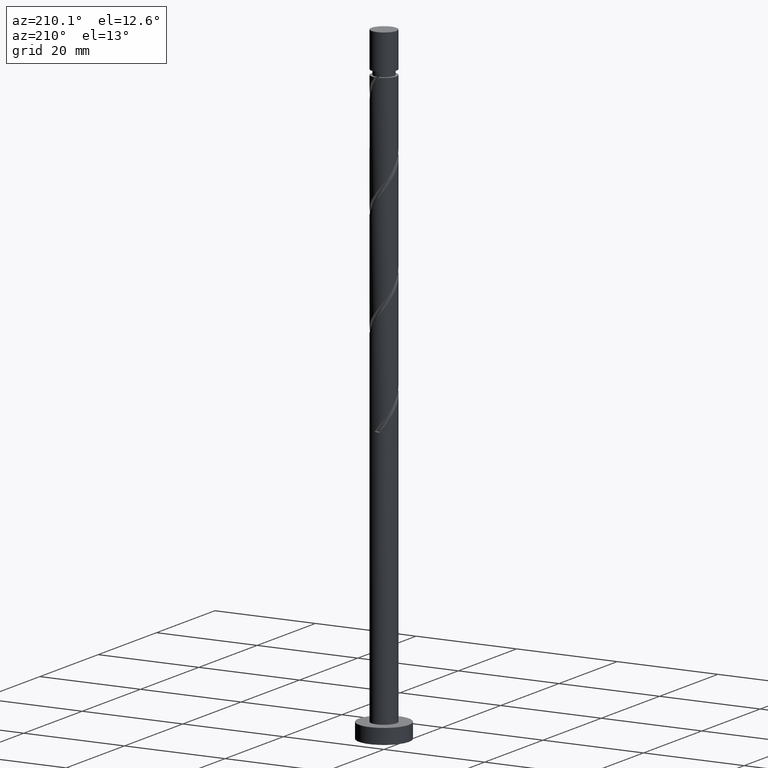
[diagram: clean part render]
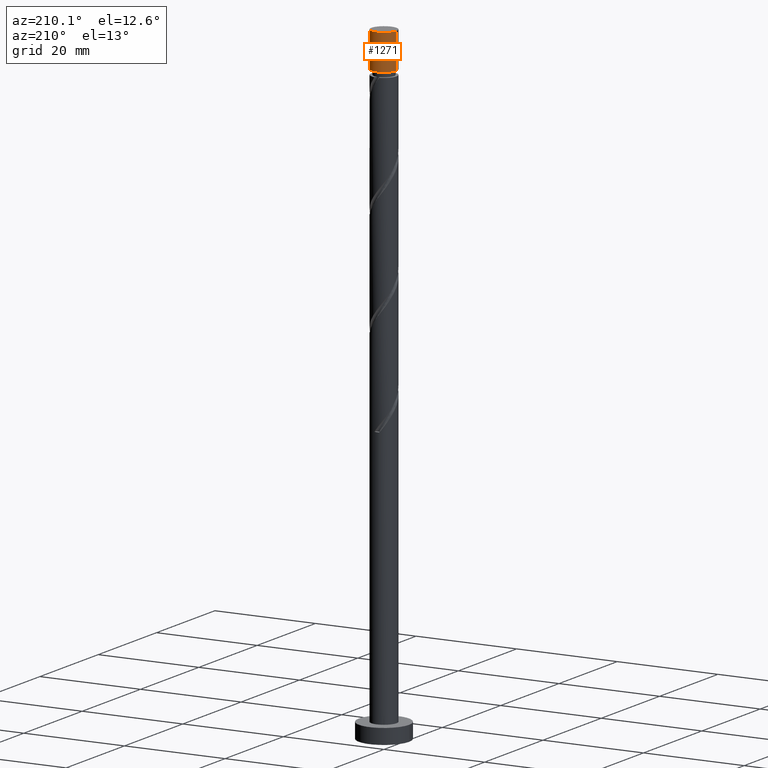
[diagram: same view with one face highlighted and labeled with its STEP entity id]
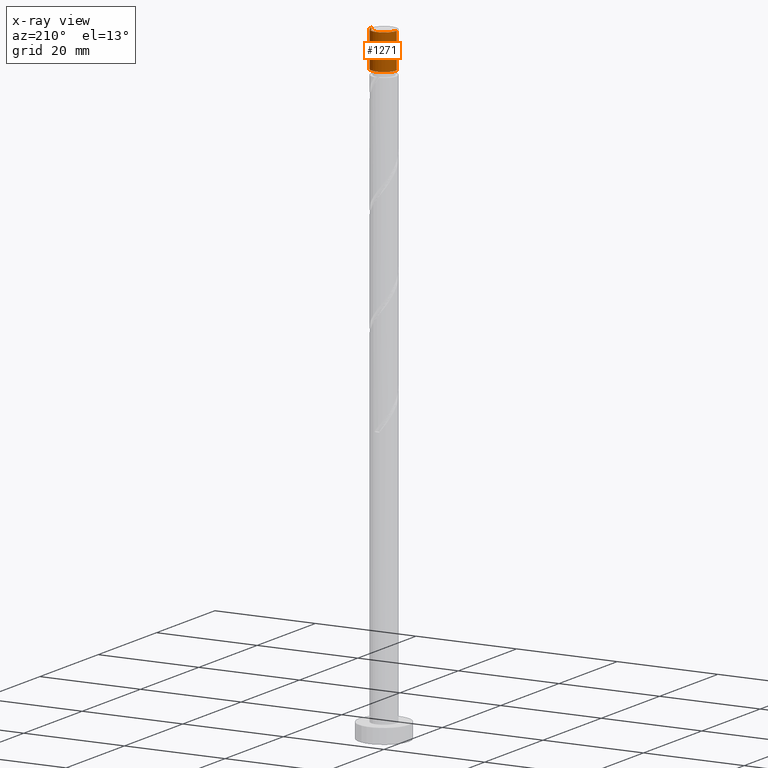
[diagram: x-ray of the same camera — body ghosted, the highlighted face saturated]
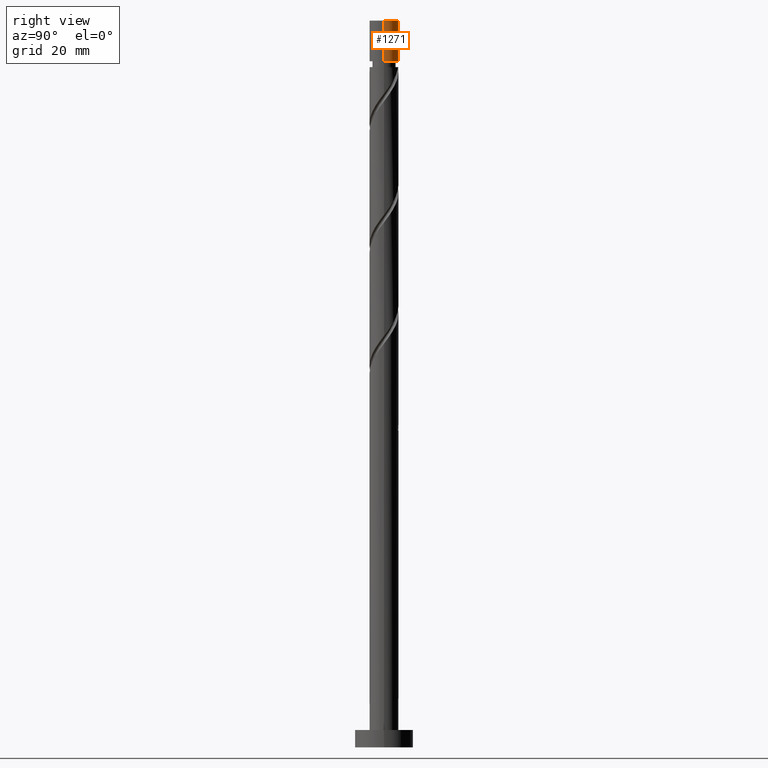
[diagram: same view with one face highlighted and labeled with its STEP entity id]
A machine part, auxiliary view. The second image highlights one B-rep face of the part: STEP entity #1271.
The next image is the same camera in x-ray: the body ghosted, the highlighted face saturated — about 0% of this face is hidden behind the body in this view.
A second angle (right view) of the same face is appended — the face is thin or edge-on in the first view.
In plain terms, the highlighted cylindrical surface (edge-blend (fillet) strip) has radius 2.5 mm, axis along (-0, -0, -1).
Its self-contained STEP definition (entity closure, byte-faithful):
#11 = CARTESIAN_POINT ( 'NONE',  ( 0.000000000000000000, 0.000000000000000000, 125.0000000000000000 ) ) ;
#25 = EDGE_CURVE ( 'NONE', #502, #1285, #726, .T. ) ;
#119 = CARTESIAN_POINT ( 'NONE',  ( 2.500000000000000000, 3.061616997868382648E-16, 125.0000000000000000 ) ) ;
#130 = DIRECTION ( 'NONE',  ( -1.000000000000000000, 0.000000000000000000, 0.000000000000000000 ) ) ;
#144 = AXIS2_PLACEMENT_3D ( 'NONE', #235, #959, #130 ) ;
#196 = CARTESIAN_POINT ( 'NONE',  ( 2.500000000000000000, 3.061616997868382648E-16, 125.0000000000000000 ) ) ;
#235 = CARTESIAN_POINT ( 'NONE',  ( 0.000000000000000000, 0.000000000000000000, 125.0000000000000000 ) ) ;
#306 = ORIENTED_EDGE ( 'NONE', *, *, #783, .F. ) ;
#344 = FACE_OUTER_BOUND ( 'NONE', #950, .T. ) ;
#502 = VERTEX_POINT ( 'NONE', #671 ) ;
#509 = DIRECTION ( 'NONE',  ( 0.000000000000000000, 0.000000000000000000, 1.000000000000000000 ) ) ;
#626 = AXIS2_PLACEMENT_3D ( 'NONE', #11, #509, #1490 ) ;
#641 = LINE ( 'NONE', #997, #1004 ) ;
#671 = CARTESIAN_POINT ( 'NONE',  ( -2.499999999999997780, 0.000000000000000000, 117.9966909838825018 ) ) ;
#723 = VERTEX_POINT ( 'NONE', #119 ) ;
#726 = CIRCLE ( 'NONE', #1084, 2.499999999999997780 ) ;
#769 = LINE ( 'NONE', #196, #1543 ) ;
#783 = EDGE_CURVE ( 'NONE', #791, #502, #641, .T. ) ;
#791 = VERTEX_POINT ( 'NONE', #991 ) ;
#920 = EDGE_CURVE ( 'NONE', #723, #1285, #769, .T. ) ;
#950 = EDGE_LOOP ( 'NONE', ( #1079, #1044, #1132, #306 ) ) ;
#958 = DIRECTION ( 'NONE',  ( -1.000000000000000000, 0.000000000000000000, 0.000000000000000000 ) ) ;
#959 = DIRECTION ( 'NONE',  ( -0.000000000000000000, -0.000000000000000000, -1.000000000000000000 ) ) ;
#991 = CARTESIAN_POINT ( 'NONE',  ( -2.500000000000000000, 0.000000000000000000, 125.0000000000000000 ) ) ;
#997 = CARTESIAN_POINT ( 'NONE',  ( -2.500000000000000000, 0.000000000000000000, 125.0000000000000000 ) ) ;
#1004 = VECTOR ( 'NONE', #1247, 1000.000000000000000 ) ;
#1044 = ORIENTED_EDGE ( 'NONE', *, *, #920, .T. ) ;
#1076 = CARTESIAN_POINT ( 'NONE',  ( 0.000000000000000000, 0.000000000000000000, 117.9966909838825018 ) ) ;
#1079 = ORIENTED_EDGE ( 'NONE', *, *, #1510, .F. ) ;
#1084 = AXIS2_PLACEMENT_3D ( 'NONE', #1076, #1448, #958 ) ;
#1100 = CARTESIAN_POINT ( 'NONE',  ( 2.499999999999997780, 3.061616997868381662E-16, 117.9966909838825018 ) ) ;
#1132 = ORIENTED_EDGE ( 'NONE', *, *, #25, .F. ) ;
#1209 = CIRCLE ( 'NONE', #626, 2.500000000000000000 ) ;
#1218 = CYLINDRICAL_SURFACE ( 'NONE', #144, 2.500000000000000000 ) ;
#1247 = DIRECTION ( 'NONE',  ( -0.000000000000000000, -0.000000000000000000, -1.000000000000000000 ) ) ;
#1271 = ADVANCED_FACE ( 'NONE', ( #344 ), #1218, .T. ) ;
#1285 = VERTEX_POINT ( 'NONE', #1100 ) ;
#1424 = DIRECTION ( 'NONE',  ( -0.000000000000000000, -0.000000000000000000, -1.000000000000000000 ) ) ;
#1448 = DIRECTION ( 'NONE',  ( -0.000000000000000000, -0.000000000000000000, -1.000000000000000000 ) ) ;
#1490 = DIRECTION ( 'NONE',  ( 1.000000000000000000, 0.000000000000000000, 0.000000000000000000 ) ) ;
#1510 = EDGE_CURVE ( 'NONE', #723, #791, #1209, .T. ) ;
#1543 = VECTOR ( 'NONE', #1424, 1000.000000000000000 ) ;